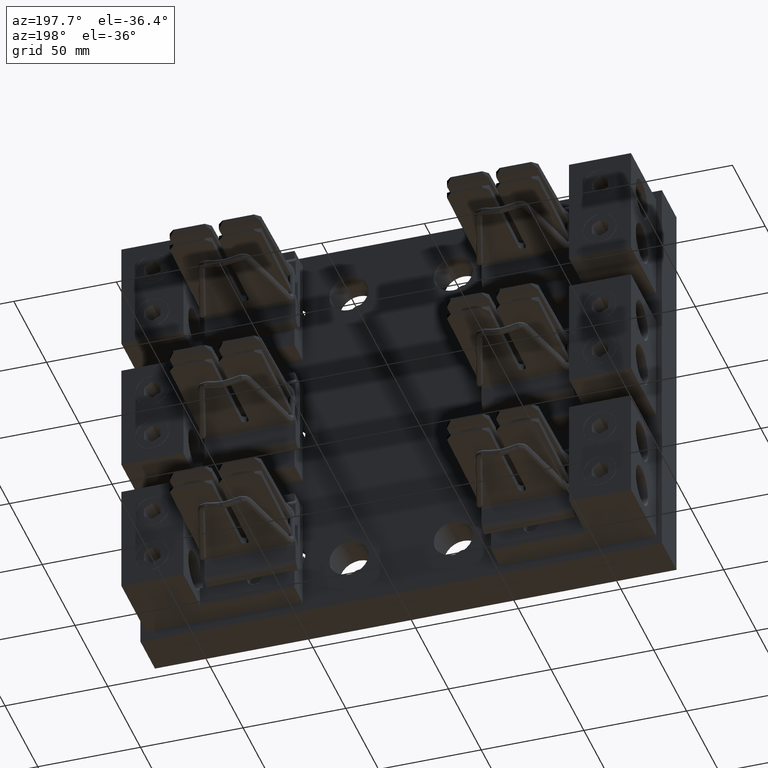
[diagram: clean part render]
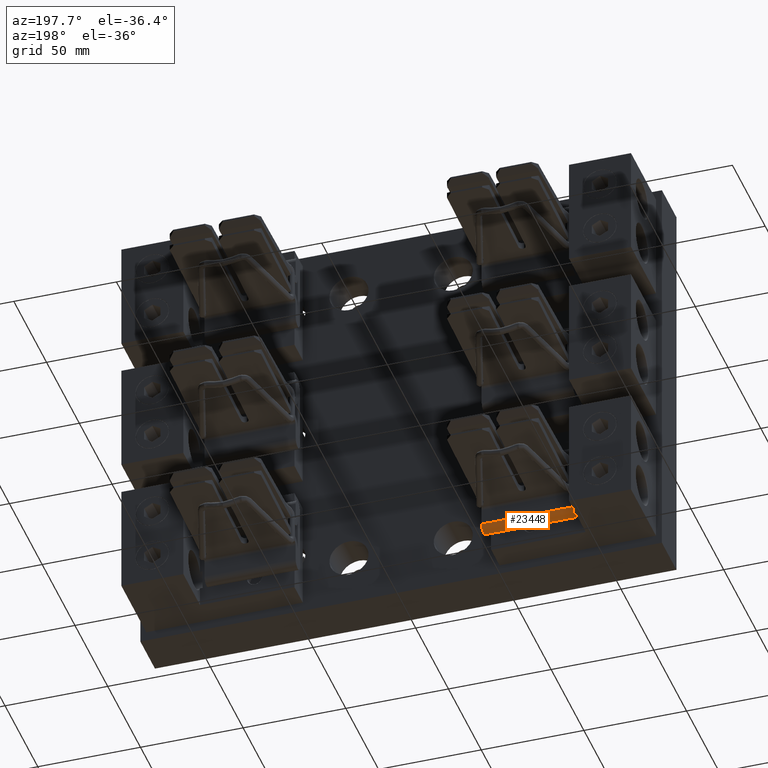
[diagram: same view with one face highlighted and labeled with its STEP entity id]
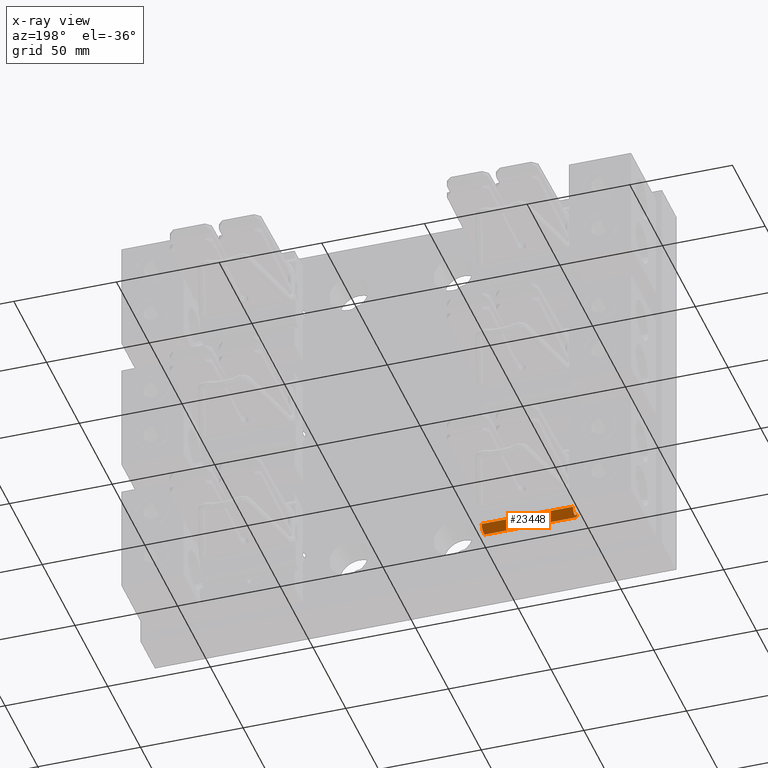
[diagram: x-ray of the same camera — body ghosted, the highlighted face saturated]
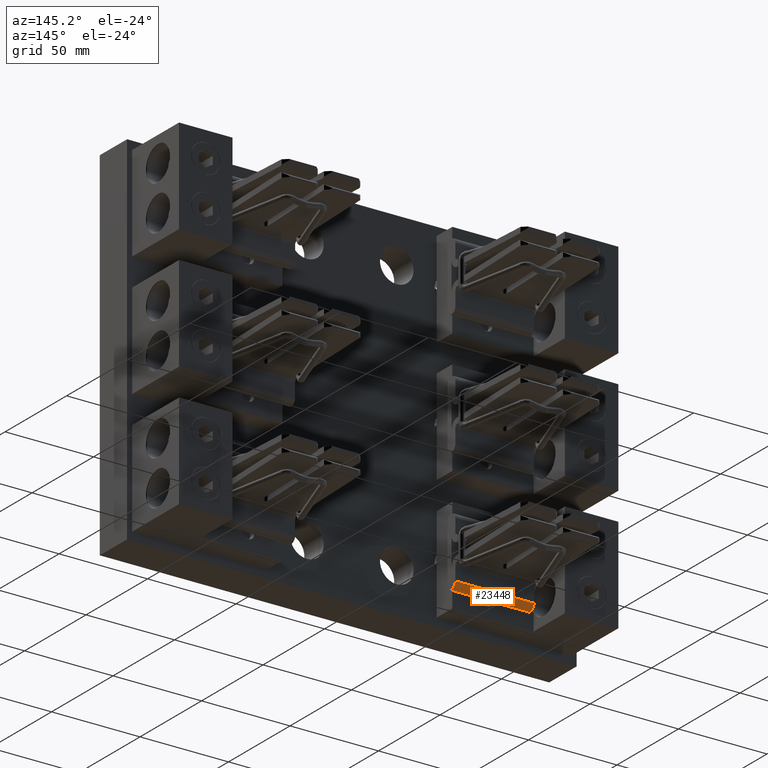
[diagram: same view with one face highlighted and labeled with its STEP entity id]
A machine part, auxiliary view. The second image highlights one B-rep face of the part: STEP entity #23448.
The next image is the same camera in x-ray: the body ghosted, the highlighted face saturated — about 0% of this face is hidden behind the body in this view.
A second angle (auxiliary view) of the same face is appended — the face is thin or edge-on in the first view.
In plain terms, the highlighted cylindrical surface (edge-blend (fillet) strip) has radius 3.175 mm, axis along (1, -0, 0).
Its self-contained STEP definition (entity closure, byte-faithful):
#520 = VECTOR ( 'NONE', #15107, 39.37007874015748100 ) ;
#554 = ORIENTED_EDGE ( 'NONE', *, *, #610, .F. ) ;
#610 = EDGE_CURVE ( 'NONE', #43411, #32330, #18721, .T. ) ;
#951 = EDGE_CURVE ( 'NONE', #4527, #42166, #2726, .T. ) ;
#1443 = EDGE_CURVE ( 'NONE', #4527, #43411, #8580, .T. ) ;
#2726 = LINE ( 'NONE', #7796, #24022 ) ;
#4188 = DIRECTION ( 'NONE',  ( 1.000000000000000000, -1.045442921748446100E-016, 3.642919299551294900E-017 ) ) ;
#4527 = VERTEX_POINT ( 'NONE', #37089 ) ;
#4934 = CYLINDRICAL_SURFACE ( 'NONE', #42946, 0.1250000000000004400 ) ;
#5463 = EDGE_CURVE ( 'NONE', #42166, #32330, #35696, .T. ) ;
#5835 = AXIS2_PLACEMENT_3D ( 'NONE', #22517, #22355, #22210 ) ;
#7796 = CARTESIAN_POINT ( 'NONE',  ( -3.532999999999999900, 1.624999999999999800, -3.381500000000001300 ) ) ;
#8099 = FACE_OUTER_BOUND ( 'NONE', #34696, .T. ) ;
#8580 = CIRCLE ( 'NONE', #5835, 0.1250000000000004400 ) ;
#8630 = ORIENTED_EDGE ( 'NONE', *, *, #1443, .F. ) ;
#15001 = CARTESIAN_POINT ( 'NONE',  ( -3.532999999999999900, 1.375000000000000200, -3.381500000000000400 ) ) ;
#15107 = DIRECTION ( 'NONE',  ( 1.000000000000000000, -1.045442921748446100E-016, 3.642919299551294900E-017 ) ) ;
#18721 = LINE ( 'NONE', #15001, #520 ) ;
#20024 = CARTESIAN_POINT ( 'NONE',  ( -1.783000000000000800, 1.624999999999999800, -3.381500000000000400 ) ) ;
#20454 = AXIS2_PLACEMENT_3D ( 'NONE', #38875, #38841, #38320 ) ;
#22091 = ORIENTED_EDGE ( 'NONE', *, *, #951, .T. ) ;
#22210 = DIRECTION ( 'NONE',  ( 0.0000000000000000000, 2.185478394931402700E-015, -1.000000000000000000 ) ) ;
#22343 = CARTESIAN_POINT ( 'NONE',  ( -3.532999999999999900, 1.375000000000000200, -3.381500000000000400 ) ) ;
#22355 = DIRECTION ( 'NONE',  ( -1.000000000000000000, 1.045442921748446100E-016, -3.642919299551294900E-017 ) ) ;
#22517 = CARTESIAN_POINT ( 'NONE',  ( -3.532999999999999900, 1.499999999999999600, -3.381500000000001300 ) ) ;
#23448 = ADVANCED_FACE ( 'NONE', ( #8099 ), #4934, .T. ) ;
#23911 = CARTESIAN_POINT ( 'NONE',  ( -1.783000000000000800, 1.375000000000000000, -3.381500000000000000 ) ) ;
#24022 = VECTOR ( 'NONE', #4188, 39.37007874015748100 ) ;
#24056 = ORIENTED_EDGE ( 'NONE', *, *, #5463, .T. ) ;
#31580 = CARTESIAN_POINT ( 'NONE',  ( -3.532999999999999900, 1.499999999999999600, -3.381500000000001300 ) ) ;
#32330 = VERTEX_POINT ( 'NONE', #23911 ) ;
#34696 = EDGE_LOOP ( 'NONE', ( #24056, #554, #8630, #22091 ) ) ;
#35257 = DIRECTION ( 'NONE',  ( 1.000000000000000000, -1.045442921748446100E-016, 3.642919299551294900E-017 ) ) ;
#35696 = CIRCLE ( 'NONE', #20454, 0.1250000000000004400 ) ;
#37089 = CARTESIAN_POINT ( 'NONE',  ( -3.532999999999999900, 1.624999999999999800, -3.381500000000001300 ) ) ;
#37359 = DIRECTION ( 'NONE',  ( 0.0000000000000000000, 2.185478394931402700E-015, -1.000000000000000000 ) ) ;
#38320 = DIRECTION ( 'NONE',  ( 0.0000000000000000000, 2.185478394931402700E-015, -1.000000000000000000 ) ) ;
#38841 = DIRECTION ( 'NONE',  ( -1.000000000000000000, 1.045442921748446100E-016, -3.642919299551294900E-017 ) ) ;
#38875 = CARTESIAN_POINT ( 'NONE',  ( -1.783000000000000800, 1.499999999999999600, -3.381500000000001300 ) ) ;
#42166 = VERTEX_POINT ( 'NONE', #20024 ) ;
#42946 = AXIS2_PLACEMENT_3D ( 'NONE', #31580, #35257, #37359 ) ;
#43411 = VERTEX_POINT ( 'NONE', #22343 ) ;